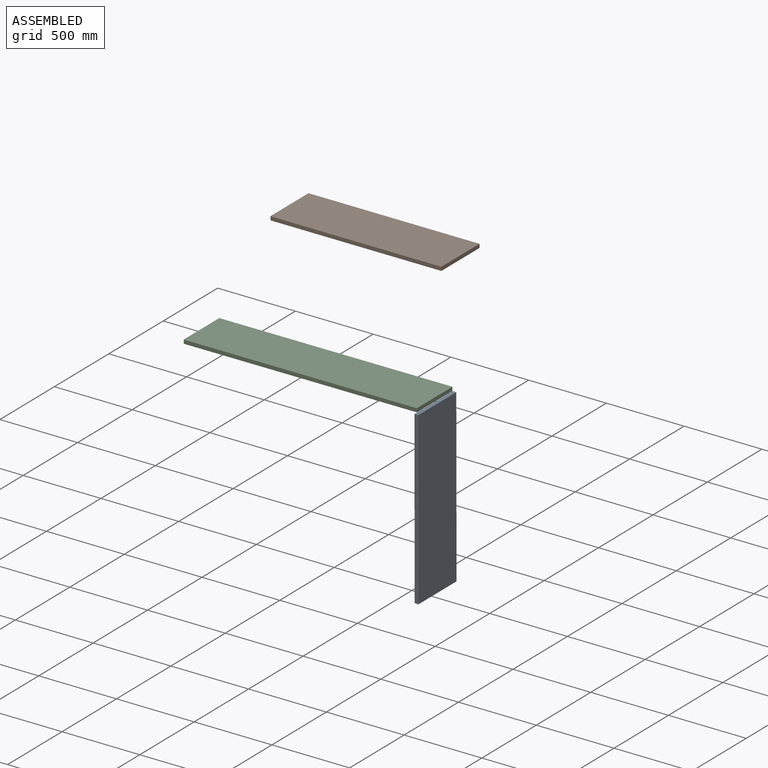
[diagram: assembled view]
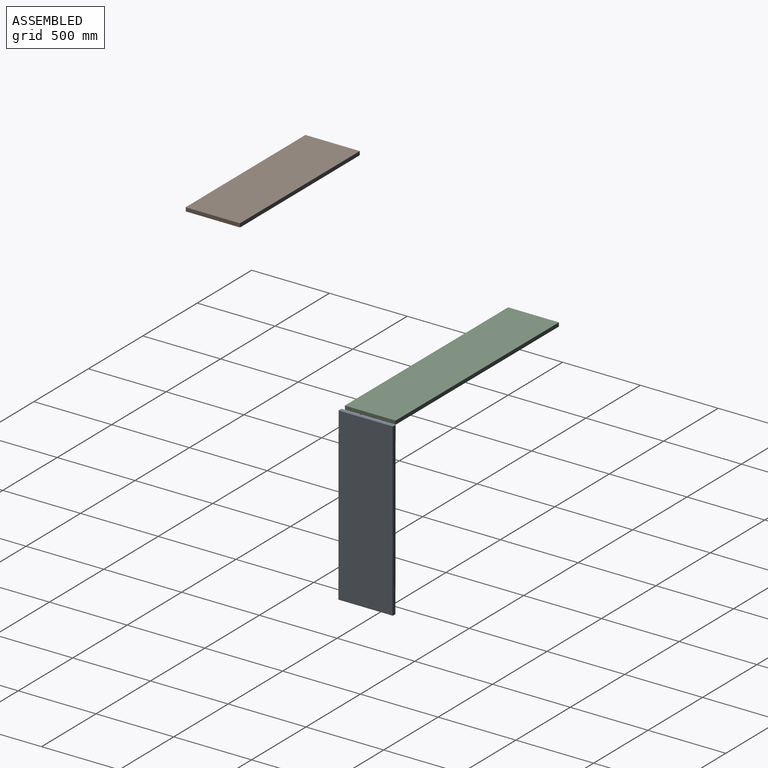
[diagram: assembled view, second angle]
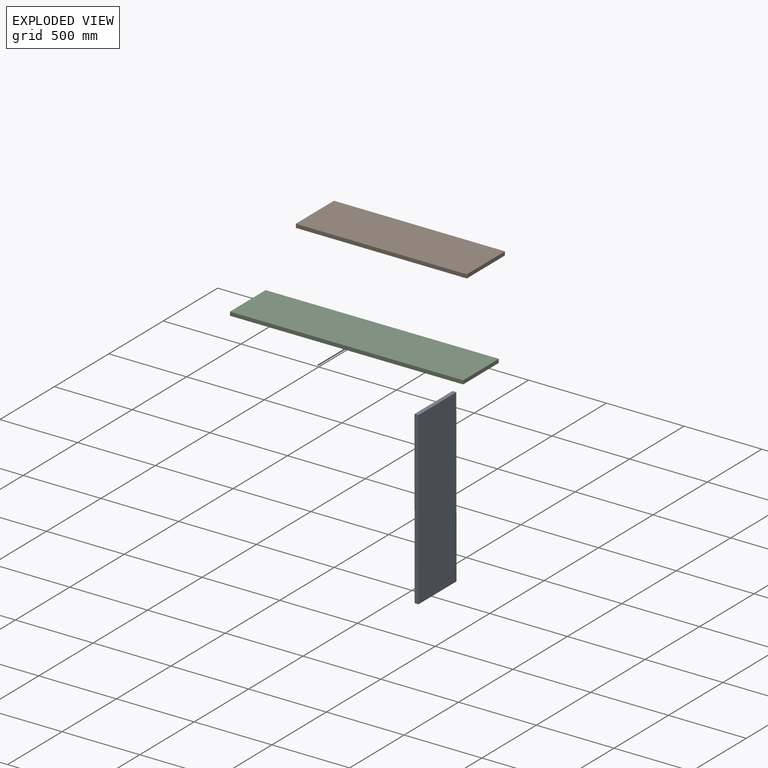
[diagram: exploded view]
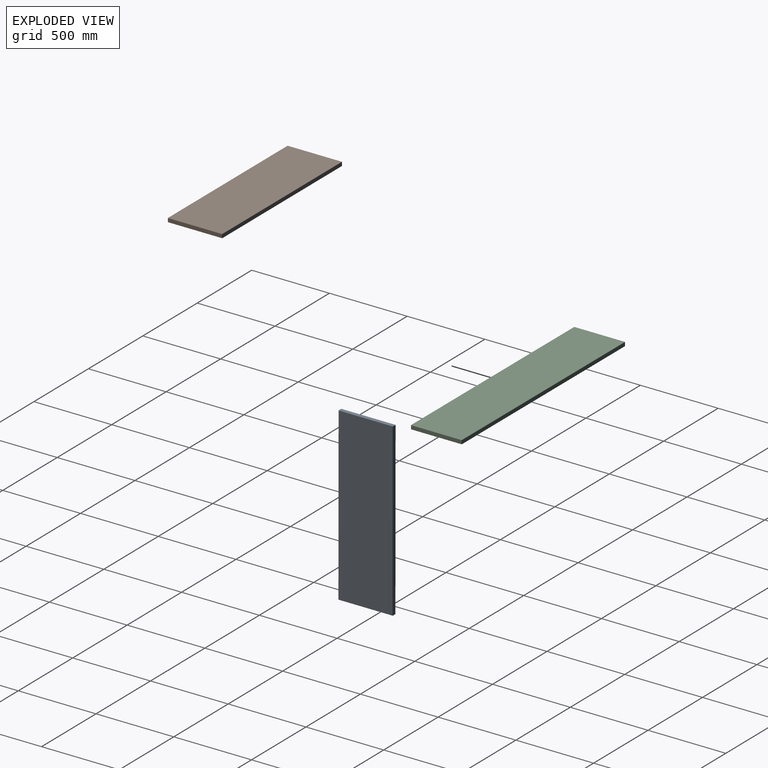
[diagram: exploded view, second angle]
ASSEMBLY  parts=3 mates=3
PART A: 26 faces, bbox 1100x350x25 mm
  f0: plane 348x23mm, normal (-1,0,0), area 8004mm2, adj f14,f19,f22,f25
  f1: plane 1098x23mm, normal (0,-1,0), area 25254mm2, adj f11,f20,f21,f25
  f2: plane 348x23mm, normal (1,0,0), area 8004mm2, adj f6,f10,f11,f12
  f3: plane 1098x23mm, normal (0,1,0), area 25254mm2, adj f6,f9,f13,f14
  f4: plane 1098x348mm, normal (0,0,1), area 382104mm2, adj f9,f10,f19,f20
  f5: plane 1098x348mm, normal (0,0,-1), area 382104mm2, adj f12,f13,f21,f22
  f6: cylinder r=1mm len=23mm, axis (0,0,1), area 36.1mm2, adj f2,f3,f7,f8
  f7: sphere r=1mm, area 1.6mm2, adj f6,f9,f10
  f8: sphere r=1mm, area 1.6mm2, adj f6,f12,f13
  f9: cylinder r=1mm len=1098mm, axis (1,0,0), area 1724.7mm2, adj f3,f4,f7,f15
  f10: cylinder r=1mm len=348mm, axis (0,-1,0), area 546.6mm2, adj f2,f4,f7,f16
  f11: cylinder r=1mm len=23mm, axis (0,0,-1), area 36.1mm2, adj f1,f2,f16,f17
  f12: cylinder r=1mm len=348mm, axis (0,1,0), area 546.6mm2, adj f2,f5,f8,f17
  f13: cylinder r=1mm len=1098mm, axis (-1,0,0), area 1724.7mm2, adj f3,f5,f8,f18
  f14: cylinder r=1mm len=23mm, axis (0,0,-1), area 36.1mm2, adj f0,f3,f15,f18
  f15: sphere r=1mm, area 1.6mm2, adj f9,f14,f19
  f16: sphere r=1mm, area 1.6mm2, adj f10,f11,f20
  f17: sphere r=1mm, area 1.6mm2, adj f11,f12,f21
  f18: sphere r=1mm, area 1.6mm2, adj f13,f14,f22
  f19: cylinder r=1mm len=348mm, axis (0,1,0), area 546.6mm2, adj f0,f4,f15,f23
  f20: cylinder r=1mm len=1098mm, axis (-1,0,0), area 1724.7mm2, adj f1,f4,f16,f23
  f21: cylinder r=1mm len=1098mm, axis (1,0,0), area 1724.7mm2, adj f1,f5,f17,f24
  f22: cylinder r=1mm len=348mm, axis (0,-1,0), area 546.6mm2, adj f0,f5,f18,f24
  f23: sphere r=1mm, area 1.6mm2, adj f19,f20,f25
  f24: sphere r=1mm, area 1.6mm2, adj f21,f22,f25
  f25: cylinder r=1mm len=23mm, axis (0,0,1), area 36.1mm2, adj f0,f1,f23,f24
PART B: same geometry as A
PART C: 26 faces, bbox 1500x327x25 mm
  f0: plane 325x23mm, normal (-1,0,0), area 7475mm2, adj f14,f19,f22,f25
  f1: plane 1498x23mm, normal (0,-1,0), area 34454mm2, adj f11,f20,f21,f25
  f2: plane 325x23mm, normal (1,0,0), area 7475mm2, adj f6,f10,f11,f12
  f3: plane 1498x23mm, normal (0,1,0), area 34454mm2, adj f6,f9,f13,f14
  f4: plane 1498x325mm, normal (0,0,1), area 486850mm2, adj f9,f10,f19,f20
  f5: plane 1498x325mm, normal (0,0,-1), area 486850mm2, adj f12,f13,f21,f22
  f6: cylinder r=1mm len=23mm, axis (0,0,1), area 36.1mm2, adj f2,f3,f7,f8
  f7: sphere r=1mm, area 1.6mm2, adj f6,f9,f10
  f8: sphere r=1mm, area 1.6mm2, adj f6,f12,f13
  f9: cylinder r=1mm len=1498mm, axis (1,0,0), area 2353.1mm2, adj f3,f4,f7,f15
  f10: cylinder r=1mm len=325mm, axis (0,-1,0), area 510.5mm2, adj f2,f4,f7,f16
  f11: cylinder r=1mm len=23mm, axis (0,0,-1), area 36.1mm2, adj f1,f2,f16,f17
  f12: cylinder r=1mm len=325mm, axis (0,1,0), area 510.5mm2, adj f2,f5,f8,f17
  f13: cylinder r=1mm len=1498mm, axis (-1,0,0), area 2353.1mm2, adj f3,f5,f8,f18
  f14: cylinder r=1mm len=23mm, axis (0,0,-1), area 36.1mm2, adj f0,f3,f15,f18
  f15: sphere r=1mm, area 1.6mm2, adj f9,f14,f19
  f16: sphere r=1mm, area 1.6mm2, adj f10,f11,f20
  f17: sphere r=1mm, area 1.6mm2, adj f11,f12,f21
  f18: sphere r=1mm, area 1.6mm2, adj f13,f14,f22
  f19: cylinder r=1mm len=325mm, axis (0,1,0), area 510.5mm2, adj f0,f4,f15,f23
  f20: cylinder r=1mm len=1498mm, axis (-1,0,0), area 2353.1mm2, adj f1,f4,f16,f23
  f21: cylinder r=1mm len=1498mm, axis (1,0,0), area 2353.1mm2, adj f1,f5,f17,f24
  f22: cylinder r=1mm len=325mm, axis (0,-1,0), area 510.5mm2, adj f0,f5,f18,f24
  f23: sphere r=1mm, area 1.6mm2, adj f19,f20,f25
  f24: sphere r=1mm, area 1.6mm2, adj f21,f22,f25
  f25: cylinder r=1mm len=23mm, axis (0,0,1), area 36.1mm2, adj f0,f1,f23,f24
PLACE A rot(axis=(0,-1,0),90.1deg) t=(188.95,790.65,-1691.15)mm fixed
PLACE B t=(-350.72,200.93,621.88)mm
PLACE C rot(axis=(0,1,0),179.9deg) t=(162.42,813.65,-566.19)mm
MATE planar A.f3 <-> C.f3  axis (0,1,0) through (175.7,1140.65,-1141.17)mm
MATE planar A.f4 <-> C.f0  axis (-1,0,0) through (163.2,965.65,-1141.19)mm
MATE planar C.f4 <-> A.f2  axis (0,0,-1) through (-587.55,977.15,-592.21)mm
